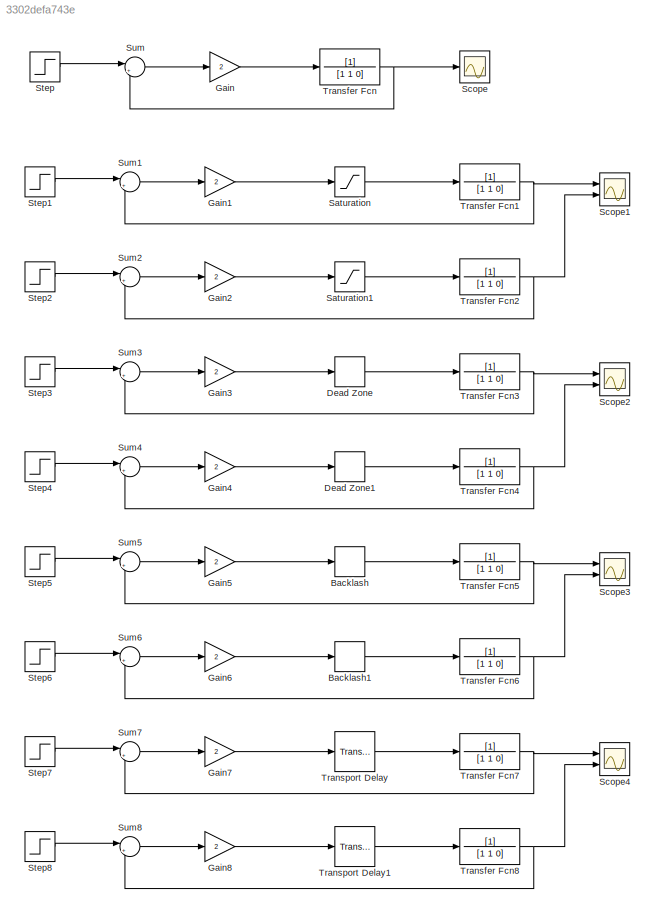
MODEL slx_3302defa743e
KIND model
CONFIG AbsTol = auto
CONFIG EnableMultiTasking = off
CONFIG FixedStep = auto
CONFIG MaxStep = auto
CONFIG MinStep = auto
CONFIG RelTol = 1e-3
CONFIG SampleTimeConstraint = Unconstrained
CONFIG SolverName = VariableStepAuto
CONFIG StartTime = 0.0
CONFIG StopTime = 40
BLOCK [Backlash] Backlash
BLOCK [Backlash] Backlash1
  BacklashWidth = 0.4
BLOCK [DeadZone] Dead Zone
BLOCK [DeadZone] Dead Zone1
  LowerValue = -0.2
  UpperValue = 0.2
BLOCK [Gain] Gain
  Gain = 2
BLOCK [Gain] Gain1
  Gain = 2
BLOCK [Gain] Gain2
  Gain = 2
BLOCK [Gain] Gain3
  Gain = 2
BLOCK [Gain] Gain4
  Gain = 2
BLOCK [Gain] Gain5
  Gain = 2
BLOCK [Gain] Gain6
  Gain = 2
BLOCK [Gain] Gain7
  Gain = 2
BLOCK [Gain] Gain8
  Gain = 2
BLOCK [Saturate] Saturation
BLOCK [Saturate] Saturation1
  LowerLimit = -0.2
  UpperLimit = 0.2
BLOCK [Scope] Scope
  Floating = off
  NumInputPorts = 1
  Ports = [1]
  ScopeSpecificationString = Simulink.scopes.TimeScopeBlockCfg('CurrentConfiguration', extmgr.ConfigurationSet(extmgr.Configuration('Core','General UI',true),extmgr.Configuration('Core','Source UI',true),extmgr.Configuration('Sources','WiredSimulink',true),extmgr.Configuration('Visuals','Time Domain',true,'SerializedDisplays',{struct('MinYLimReal','-0.16308','MaxYLimReal','1.46775','YLabelReal','','MinYLimMag','0.00000','MaxY...<+1358ch>
BLOCK [Scope] Scope1
  Floating = off
  NumInputPorts = 2
  Ports = [2]
  ScopeSpecificationString = Simulink.scopes.TimeScopeBlockCfg('CurrentConfiguration', extmgr.ConfigurationSet(extmgr.Configuration('Core','General UI',true),extmgr.Configuration('Core','Source UI',true),extmgr.Configuration('Sources','WiredSimulink',true,'DataLoggingVariableName','ScopeData1'),extmgr.Configuration('Visuals','Time Domain',true,'SerializedDisplays',{struct('MinYLimReal','-0.14442','MaxYLimReal','1.29978','YLab...<+1419ch>
BLOCK [Scope] Scope2
  Floating = off
  NumInputPorts = 2
  Ports = [2]
  ScopeSpecificationString = Simulink.scopes.TimeScopeBlockCfg('CurrentConfiguration', extmgr.ConfigurationSet(extmgr.Configuration('Core','General UI',true),extmgr.Configuration('Core','Source UI',true),extmgr.Configuration('Sources','WiredSimulink',true,'DataLoggingVariableName','ScopeData2'),extmgr.Configuration('Visuals','Time Domain',true,'SerializedDisplays',{struct('MinYLimReal','-0.15981','MaxYLimReal','1.4383','YLabe...<+1413ch>
BLOCK [Scope] Scope3
  Floating = off
  NumInputPorts = 2
  Ports = [2]
  ScopeSpecificationString = Simulink.scopes.TimeScopeBlockCfg('CurrentConfiguration', extmgr.ConfigurationSet(extmgr.Configuration('Core','General UI',true),extmgr.Configuration('Core','Source UI',true),extmgr.Configuration('Sources','WiredSimulink',true,'DataLoggingVariableName','ScopeData3'),extmgr.Configuration('Visuals','Time Domain',true,'SerializedDisplays',{struct('MinYLimReal','-0.19541','MaxYLimReal','1.7587','YLabe...<+1439ch>
BLOCK [Scope] Scope4
  Floating = off
  NumInputPorts = 2
  Ports = [2]
  ScopeSpecificationString = Simulink.scopes.TimeScopeBlockCfg('CurrentConfiguration', extmgr.ConfigurationSet(extmgr.Configuration('Core','General UI',true),extmgr.Configuration('Core','Source UI',true),extmgr.Configuration('Sources','WiredSimulink',true,'DataLoggingVariableName','ScopeData4'),extmgr.Configuration('Visuals','Time Domain',true,'SerializedDisplays',{struct('MinYLimReal','-0.24234','MaxYLimReal','2.18105','YLab...<+1445ch>
BLOCK [Step] Step
  SampleTime = 0
BLOCK [Step] Step1
  SampleTime = 0
BLOCK [Step] Step2
  SampleTime = 0
BLOCK [Step] Step3
  SampleTime = 0
BLOCK [Step] Step4
  SampleTime = 0
BLOCK [Step] Step5
  SampleTime = 0
BLOCK [Step] Step6
  SampleTime = 0
BLOCK [Step] Step7
  SampleTime = 0
BLOCK [Step] Step8
  SampleTime = 0
BLOCK [Sum] Sum
  Inputs = |+-
  Ports = [2, 1]
BLOCK [Sum] Sum1
  Inputs = |+-
  Ports = [2, 1]
BLOCK [Sum] Sum2
  Inputs = |+-
  Ports = [2, 1]
BLOCK [Sum] Sum3
  Inputs = |+-
  Ports = [2, 1]
BLOCK [Sum] Sum4
  Inputs = |+-
  Ports = [2, 1]
BLOCK [Sum] Sum5
  Inputs = |+-
  Ports = [2, 1]
BLOCK [Sum] Sum6
  Inputs = |+-
  Ports = [2, 1]
BLOCK [Sum] Sum7
  Inputs = |+-
  Ports = [2, 1]
BLOCK [Sum] Sum8
  Inputs = |+-
  Ports = [2, 1]
BLOCK [TransferFcn] Transfer Fcn
  Denominator = [1 1 0]
BLOCK [TransferFcn] Transfer Fcn1
  Denominator = [1 1 0]
BLOCK [TransferFcn] Transfer Fcn2
  Denominator = [1 1 0]
BLOCK [TransferFcn] Transfer Fcn3
  Denominator = [1 1 0]
BLOCK [TransferFcn] Transfer Fcn4
  Denominator = [1 1 0]
BLOCK [TransferFcn] Transfer Fcn5
  Denominator = [1 1 0]
BLOCK [TransferFcn] Transfer Fcn6
  Denominator = [1 1 0]
BLOCK [TransferFcn] Transfer Fcn7
  Denominator = [1 1 0]
BLOCK [TransferFcn] Transfer Fcn8
  Denominator = [1 1 0]
BLOCK [TransportDelay] Transport Delay
  DelayTime = 0.5
  Ports = [1, 1]
BLOCK [TransportDelay] Transport Delay1
  DelayTime = 0.2
  Ports = [1, 1]
LINE Backlash1:1 -> Transfer Fcn6:1
LINE Backlash:1 -> Transfer Fcn5:1
LINE Dead Zone1:1 -> Transfer Fcn4:1
LINE Dead Zone:1 -> Transfer Fcn3:1
LINE Gain1:1 -> Saturation:1
LINE Gain2:1 -> Saturation1:1
LINE Gain3:1 -> Dead Zone:1
LINE Gain4:1 -> Dead Zone1:1
LINE Gain5:1 -> Backlash:1
LINE Gain6:1 -> Backlash1:1
LINE Gain7:1 -> Transport Delay:1
LINE Gain8:1 -> Transport Delay1:1
LINE Gain:1 -> Transfer Fcn:1
LINE Saturation1:1 -> Transfer Fcn2:1
LINE Saturation:1 -> Transfer Fcn1:1
LINE Step1:1 -> Sum1:1
LINE Step2:1 -> Sum2:1
LINE Step3:1 -> Sum3:1
LINE Step4:1 -> Sum4:1
LINE Step5:1 -> Sum5:1
LINE Step6:1 -> Sum6:1
LINE Step7:1 -> Sum7:1
LINE Step8:1 -> Sum8:1
LINE Step:1 -> Sum:1
LINE Sum1:1 -> Gain1:1
LINE Sum2:1 -> Gain2:1
LINE Sum3:1 -> Gain3:1
LINE Sum4:1 -> Gain4:1
LINE Sum5:1 -> Gain5:1
LINE Sum6:1 -> Gain6:1
LINE Sum7:1 -> Gain7:1
LINE Sum8:1 -> Gain8:1
LINE Sum:1 -> Gain:1
NET Transfer Fcn1:1 -> Scope1:1, Sum1:2
NET Transfer Fcn2:1 -> Scope1:2, Sum2:2
NET Transfer Fcn3:1 -> Scope2:1, Sum3:2
NET Transfer Fcn4:1 -> Scope2:2, Sum4:2
NET Transfer Fcn5:1 -> Scope3:1, Sum5:2
NET Transfer Fcn6:1 -> Scope3:2, Sum6:2
NET Transfer Fcn7:1 -> Scope4:1, Sum7:2
NET Transfer Fcn8:1 -> Scope4:2, Sum8:2
NET Transfer Fcn:1 -> Scope:1, Sum:2
LINE Transport Delay1:1 -> Transfer Fcn8:1
LINE Transport Delay:1 -> Transfer Fcn7:1
note: NET lines group one-source signal fan-out (src -> all destinations, sorted); 1:1 wires keep LINE
